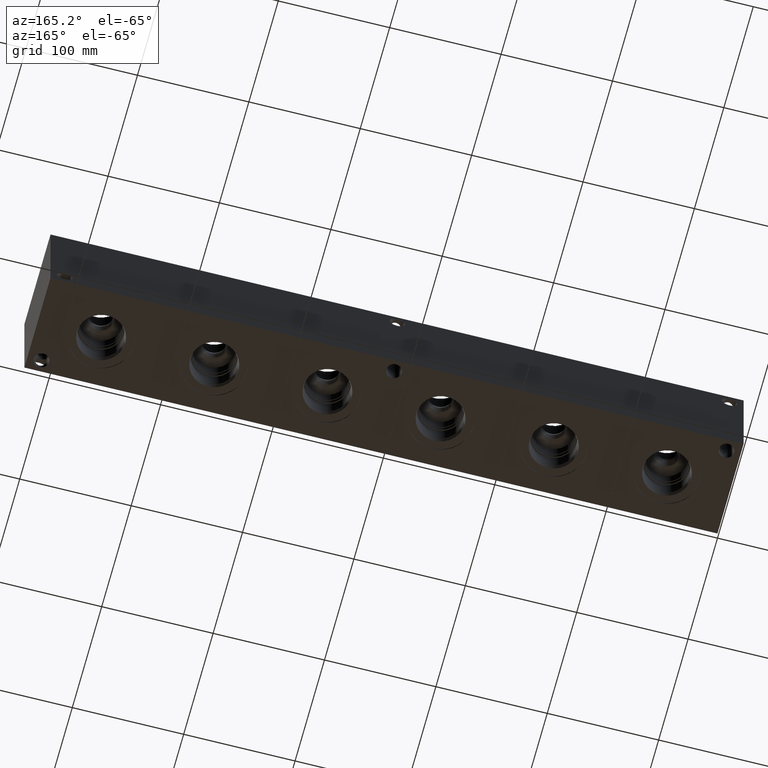
[diagram: clean part render]
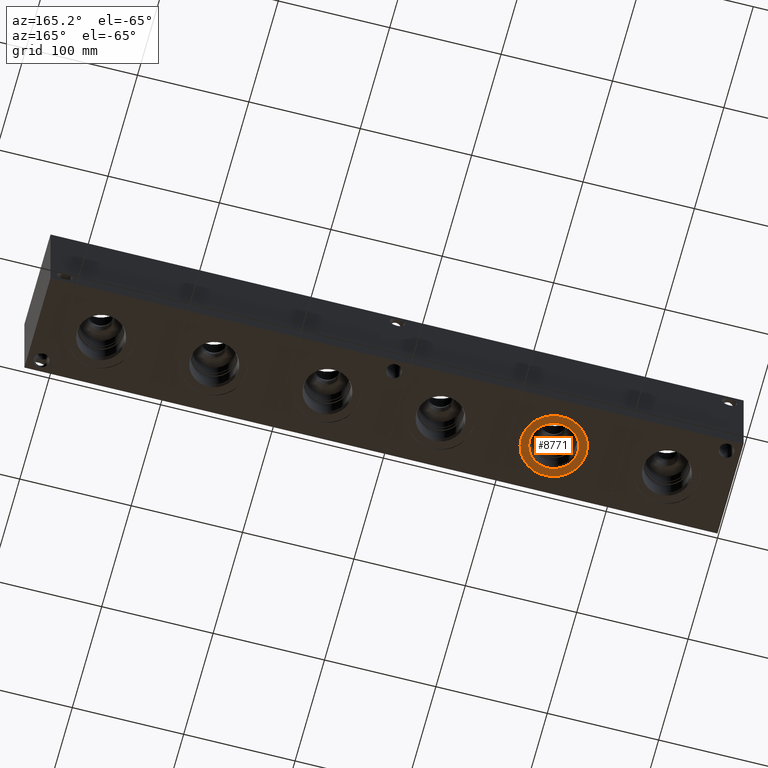
[diagram: same view with one face highlighted and labeled with its STEP entity id]
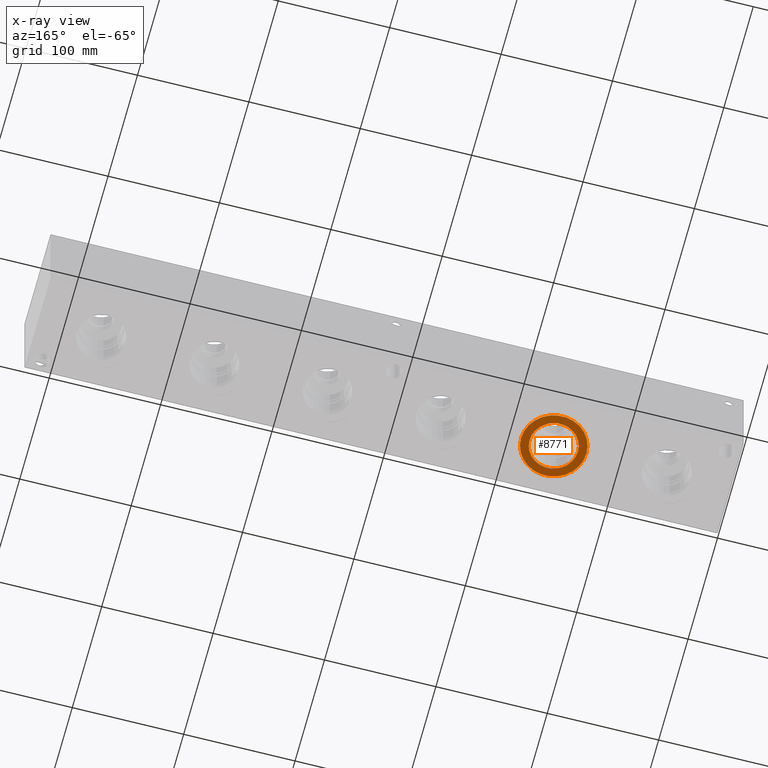
[diagram: x-ray of the same camera — body ghosted, the highlighted face saturated]
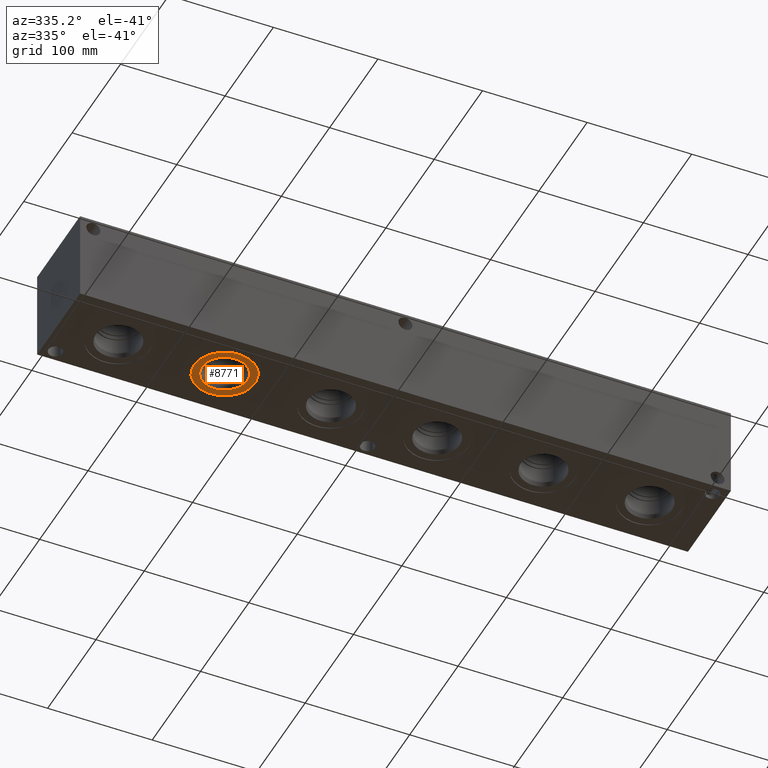
[diagram: same view with one face highlighted and labeled with its STEP entity id]
A machine part, auxiliary view. The second image highlights one B-rep face of the part: STEP entity #8771.
The next image is the same camera in x-ray: the body ghosted, the highlighted face saturated — about 0% of this face is hidden behind the body in this view.
A second angle (auxiliary view) of the same face is appended — the face is thin or edge-on in the first view.
In plain terms, the highlighted planar face has unit normal (0, 0, -1).
Its self-contained STEP definition (entity closure, byte-faithful):
#267=CIRCLE('',#9269,29.2862);
#268=CIRCLE('',#9270,29.2862);
#269=CIRCLE('',#9271,21.7551);
#422=FACE_BOUND('',#1691,.T.);
#1179=FACE_OUTER_BOUND('',#1690,.T.);
#1690=EDGE_LOOP('',(#7445,#7446));
#1691=EDGE_LOOP('',(#7447));
#4034=VERTEX_POINT('',#15049);
#4035=VERTEX_POINT('',#15050);
#4036=VERTEX_POINT('',#15053);
#5203=EDGE_CURVE('',#4034,#4035,#267,.T.);
#5204=EDGE_CURVE('',#4035,#4034,#268,.T.);
#5205=EDGE_CURVE('',#4036,#4036,#269,.T.);
#7445=ORIENTED_EDGE('',*,*,#5203,.T.);
#7446=ORIENTED_EDGE('',*,*,#5204,.T.);
#7447=ORIENTED_EDGE('',*,*,#5205,.F.);
#8061=PLANE('',#9268);
#8771=ADVANCED_FACE('',(#1179,#422),#8061,.T.);
#9268=AXIS2_PLACEMENT_3D('',#15048,#10955,#10956);
#9269=AXIS2_PLACEMENT_3D('',#15051,#10957,#10958);
#9270=AXIS2_PLACEMENT_3D('',#15052,#10959,#10960);
#9271=AXIS2_PLACEMENT_3D('',#15054,#10961,#10962);
#10955=DIRECTION('center_axis',(0.,0.,-1.));
#10956=DIRECTION('ref_axis',(1.,0.,0.));
#10957=DIRECTION('center_axis',(0.,0.,-1.));
#10958=DIRECTION('ref_axis',(1.,0.,0.));
#10959=DIRECTION('center_axis',(0.,0.,-1.));
#10960=DIRECTION('ref_axis',(1.,0.,0.));
#10961=DIRECTION('center_axis',(0.,0.,-1.));
#10962=DIRECTION('ref_axis',(1.,0.,0.));
#15048=CARTESIAN_POINT('Origin',(158.75,44.45,0.7874));
#15049=CARTESIAN_POINT('',(188.0362,44.45,0.7874));
#15050=CARTESIAN_POINT('',(129.4638,44.45,0.7874));
#15051=CARTESIAN_POINT('Origin',(158.75,44.45,0.7874));
#15052=CARTESIAN_POINT('Origin',(158.75,44.45,0.7874));
#15053=CARTESIAN_POINT('',(136.9949,44.45,0.7874));
#15054=CARTESIAN_POINT('Origin',(158.75,44.45,0.7874));